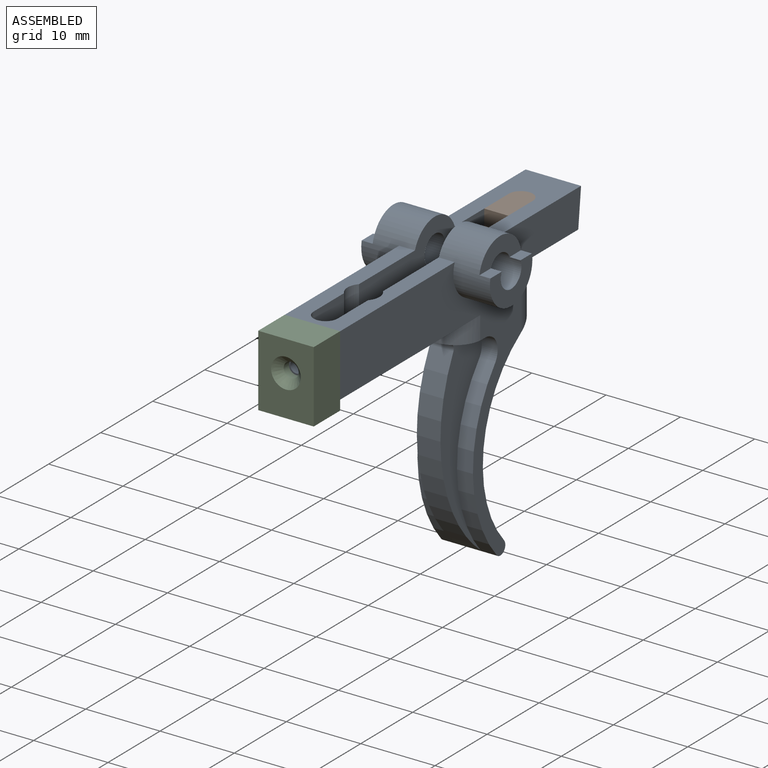
[diagram: assembled view]
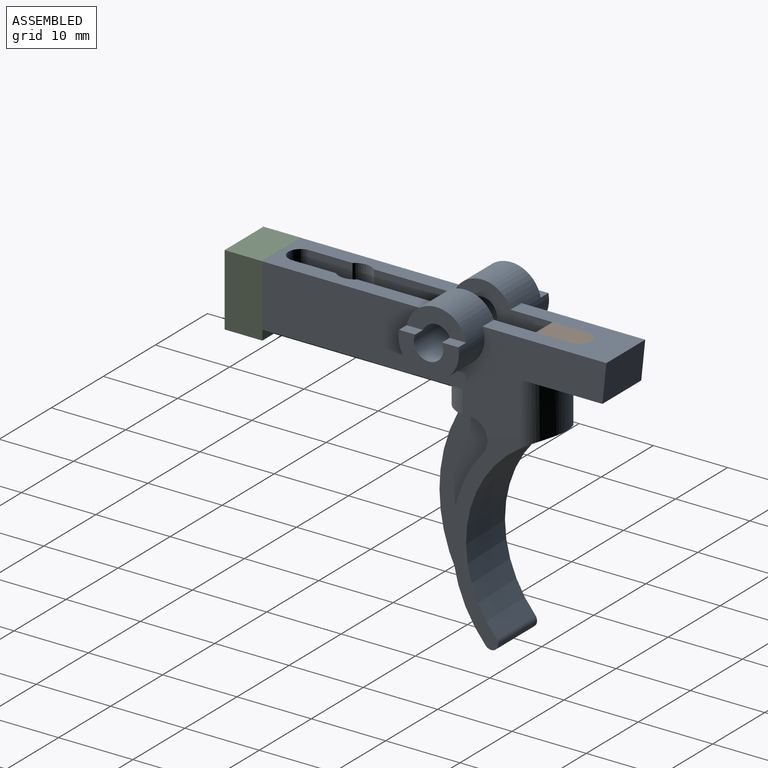
[diagram: assembled view, second angle]
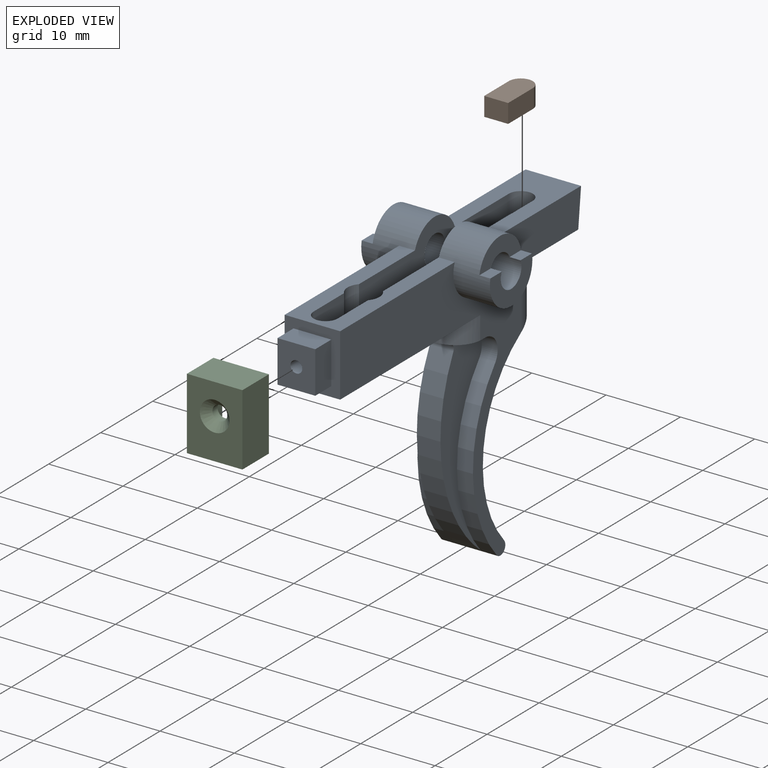
[diagram: exploded view]
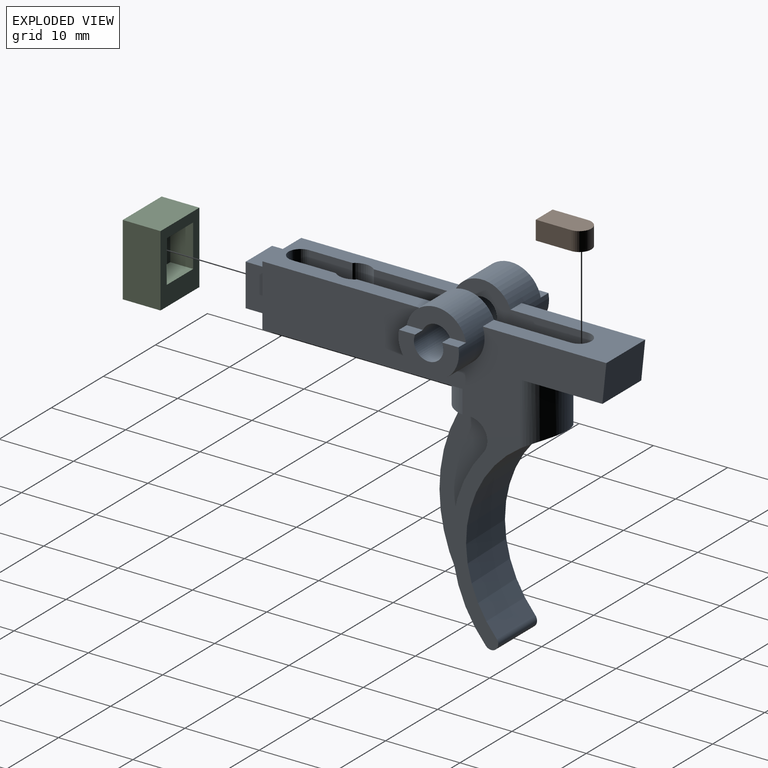
[diagram: exploded view, second angle]
ASSEMBLY  parts=3 mates=3
PART A: 52 faces, bbox 49.8x17.7x42.1 mm
  f0: plane 22.01x7.47mm, normal (0,0,1), area 95.3mm2, adj f6,f8,f11,f15,f16,f17,f31,f41
  f1: plane 5.08x3.08mm, normal (0,0,1), area 15.6mm2, adj f2,f4,f48,f49
  f2: plane 5.66x3.08mm, normal (0,1,0), area 17.4mm2, adj f1,f3,f48,f49
  f3: plane 5.08x3.08mm, normal (0,0,-1), area 15.6mm2, adj f2,f4,f48,f49
  f4: plane 5.66x3.08mm, normal (0,-1,0), area 17.4mm2, adj f1,f3,f48,f49
  f5: cylinder r=0.8mm len=4.22mm, axis (1,0,0), area 21.2mm2, adj f6,f49
  f6: cylinder r=1.61mm len=5.97mm, axis (0,0,1), area 28.2mm2, adj f0,f5,f40,f41,f42
  f7: plane 26.92x7.47mm, normal (0,0,-1), area 182.7mm2, adj f8,f13,f31,f48
  f8: plane 46.71x39.46mm, normal (0,1,0), area 398.3mm2, adj f0,f7,f12,f13,f14,f15,f33,f34
  f9: cylinder r=1.98mm len=7.04mm, axis (0,1,0), area 81.1mm2, adj f16,f18,f19,f20,f21
  f10: cylinder r=1.98mm len=7.04mm, axis (0,1,0), area 81.1mm2, adj f17,f26,f27,f28,f32
  f11: cylinder r=4.08mm len=8.15mm, axis (0,1,0), area 130.5mm2, adj f0,f14,f16,f18,f19,f20,f21,f31
  f12: plane 7.47x4.22mm, normal (0,0,-1), area 13.5mm2, adj f8,f13,f23,f24,f25,f30,f31,f39
  f13: cylinder r=3.77mm len=7.47mm, axis (0,0,1), area 33.5mm2, adj f7,f8,f12,f31
  f14: plane 16.65x7.47mm, normal (0,0,1), area 86.7mm2, adj f8,f11,f15,f16,f31,f33,f44,f46
  f15: cylinder r=4.08mm len=8.15mm, axis (0,-1,0), area 130.5mm2, adj f0,f8,f14,f17,f26,f27,f28,f32
  f16: plane 28.85x8.68mm, normal (0,1,0), area 152.5mm2, adj f0,f9,f11,f14,f43,f45,f46,f47
  f17: plane 18.55x8.79mm, normal (0,-1,0), area 112.1mm2, adj f0,f10,f15,f43,f44,f50
  f18: plane 2.18x1.48mm, normal (0,0,1), area 3.2mm2, adj f9,f11,f20,f21
  f19: plane 2.18x1.48mm, normal (0,0,1), area 3.2mm2, adj f9,f11,f20,f21
  f20: plane 8.02x3.3mm, normal (0,-1,0), area 16.5mm2, adj f9,f11,f18,f19
  f21: plane 8.21x4.94mm, normal (0,-1,0), area 23.4mm2, adj f9,f11,f18,f19
  f22: cylinder r=17.78mm len=23.37mm, axis (0,1,0), area 54.8mm2, adj f24,f25,f31,f37
  f23: cylinder r=0.79mm len=3.18mm, axis (0,-1,0), area 5.2mm2, adj f12,f24,f29,f30
  f24: plane 27.72x8.4mm, normal (0,-1,0), area 87.1mm2, adj f12,f22,f23,f25,f29
  f25: cylinder r=2.38mm len=3.92mm, axis (0,1,0), area 11.6mm2, adj f12,f22,f24,f31
  f26: plane 2.18x1.48mm, normal (0,0,1), area 3.2mm2, adj f10,f15,f28,f32
  f27: plane 2.18x1.48mm, normal (0,0,1), area 3.2mm2, adj f10,f15,f28,f32
  f28: plane 8.06x3.34mm, normal (0,1,0), area 16.5mm2, adj f10,f15,f26,f27
  f29: cylinder r=20.96mm len=26.13mm, axis (0,-1,0), area 91.7mm2, adj f23,f24,f30,f37
  f30: plane 27.72x8.4mm, normal (0,1,0), area 87.1mm2, adj f12,f23,f29,f38,f39
  f31: plane 46.71x39.46mm, normal (0,-1,0), area 398.5mm2, adj f0,f7,f11,f12,f13,f14,f22,f25
  f32: plane 8.27x5.01mm, normal (0,1,0), area 23.5mm2, adj f10,f15,f26,f27
  f33: plane 7.47x5.11mm, normal (-0.99,0,-0.1), area 38.3mm2, adj f8,f14,f31,f34
  f34: plane 11.18x7.58mm, normal (0,0,-1), area 60.7mm2, adj f8,f31,f33,f35
  f35: cylinder r=3.73mm len=8.38mm, axis (0,0,1), area 85.1mm2, adj f8,f31,f34,f36
  f36: cylinder r=15.88mm len=25.73mm, axis (0,1,0), area 229.5mm2, adj f8,f31,f35,f37
  f37: cylinder r=0.95mm len=7.47mm, axis (0,1,0), area 22.3mm2, adj f8,f22,f29,f31,f36,f38
  f38: cylinder r=17.78mm len=23.37mm, axis (0,1,0), area 54.8mm2, adj f8,f30,f37,f39
  f39: cylinder r=2.38mm len=3.92mm, axis (0,1,0), area 11.6mm2, adj f8,f12,f30,f38
  f40: plane 7.46x3.23mm, normal (0,0,1), area 21.3mm2, adj f6,f41,f42,f50
  f41: plane 5.97x5.85mm, normal (0,-1,0), area 34.9mm2, adj f0,f6,f40,f50
  f42: plane 5.97x5.85mm, normal (0,1,0), area 34.9mm2, adj f0,f6,f40,f50
  f43: plane 24.05x3.23mm, normal (0,0,1), area 74.9mm2, adj f16,f17,f44,f45,f50
  f44: plane 10.4x5.97mm, normal (0,-1,0), area 40.3mm2, adj f14,f17,f43,f45,f46,f47
  f45: cylinder r=1.61mm len=3.43mm, axis (0,0,1), area 17.4mm2, adj f16,f43,f44,f47
  f46: cylinder r=1.61mm len=3.23mm, axis (0,0,1), area 12.9mm2, adj f14,f16,f44,f47
  f47: plane 7.96x3.23mm, normal (0,0,1), area 20.5mm2, adj f16,f44,f45,f46
  f48: plane 8.32x7.47mm, normal (1,0,0), area 33.4mm2, adj f0,f1,f2,f3,f4,f7,f8,f31
  f49: plane 5.66x5.08mm, normal (1,0,0), area 26.7mm2, adj f1,f2,f3,f4,f5
  f50: cylinder r=2.16mm len=7.24mm, axis (0,0,1), area 54.7mm2, adj f0,f16,f17,f40,f41,f42,f43,f51
  f51: plane 4.32x4.32mm, normal (0,0,1), area 14.6mm2, adj f50
PART B: 6 faces, bbox 3.2x2.5x6.4 mm
  f0: plane 4.74x2.54mm, normal (1,0,0), area 12mm2, adj f1,f3,f4,f5
  f1: cylinder r=1.61mm len=3.23mm, axis (0,1,0), area 12.9mm2, adj f0,f2,f4,f5
  f2: plane 4.74x2.54mm, normal (-1,0,0), area 12mm2, adj f1,f3,f4,f5
  f3: plane 3.23x2.54mm, normal (0,0,-1), area 8.2mm2, adj f0,f2,f4,f5
  f4: plane 6.35x3.23mm, normal (0,-1,0), area 19.4mm2, adj f0,f1,f2,f3
  f5: plane 6.35x3.23mm, normal (0,1,0), area 19.4mm2, adj f0,f1,f2,f3
PART C: 13 faces, bbox 7.5x5.1x9.7 mm
  f0: plane 9.65x7.47mm, normal (0,1,0), area 43.3mm2, adj f2,f3,f4,f5,f8,f9,f10,f11
  f1: cylinder r=1mm len=2mm, axis (0,-1,0), area 6.3mm2, adj f7,f12
  f2: plane 9.65x5.08mm, normal (1,0,0), area 49mm2, adj f0,f3,f5,f6
  f3: plane 7.47x5.08mm, normal (0,0,1), area 37.9mm2, adj f0,f2,f4,f6
  f4: plane 9.65x5.08mm, normal (-1,0,0), area 49mm2, adj f0,f3,f5,f6
  f5: plane 7.47x5.08mm, normal (0,0,-1), area 37.9mm2, adj f0,f2,f4,f6
  f6: plane 9.65x7.47mm, normal (0,-1,0), area 59.5mm2, adj f2,f3,f4,f5,f7
  f7: cone r=1mm half-angle=45deg, axis (0,-1,0), area 13.3mm2, adj f1,f6
  f8: plane 5.66x3.08mm, normal (1,0,0), area 17.4mm2, adj f0,f9,f11,f12
  f9: plane 5.08x3.08mm, normal (0,0,-1), area 15.7mm2, adj f0,f8,f10,f12
  f10: plane 5.66x3.08mm, normal (-1,0,0), area 17.4mm2, adj f0,f9,f11,f12
  f11: plane 5.08x3.08mm, normal (0,0,1), area 15.7mm2, adj f0,f8,f10,f12
  f12: plane 5.66x5.08mm, normal (0,1,0), area 25.6mm2, adj f1,f8,f9,f10,f11
PLACE A rot(axis=(0,0,-1),90deg) t=(-8,2.25,-24.66)mm
PLACE B rot(axis=(-1,0,0),90deg) t=(-8,14.11,-25.78)mm
PLACE C rot(axis=(-1,0,0),0deg) t=(-8,-28.65,-28.06)mm
MATE slider A.f46 <-> B.f1  axis (0,0,1) through (-8,16.48,-23.24)mm
MATE planar B.f5 <-> A.f47  axis (0,0,-1) through (-8,14.75,-25.78)mm
MATE fastened C.f12 <-> A.f49  axis (0,1,0) through (-5.46,-26.65,-30.22)mm
